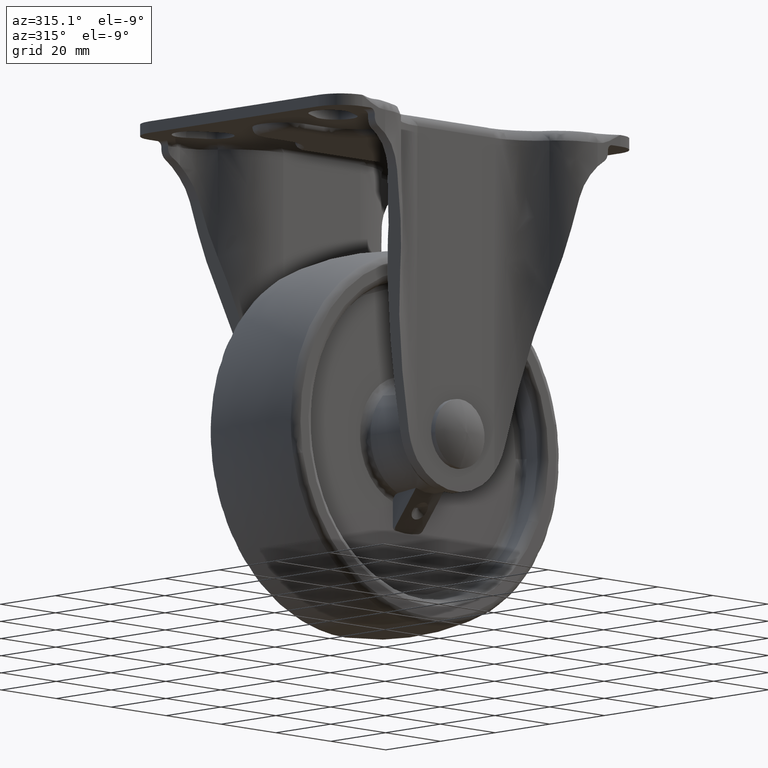
[diagram: clean part render]
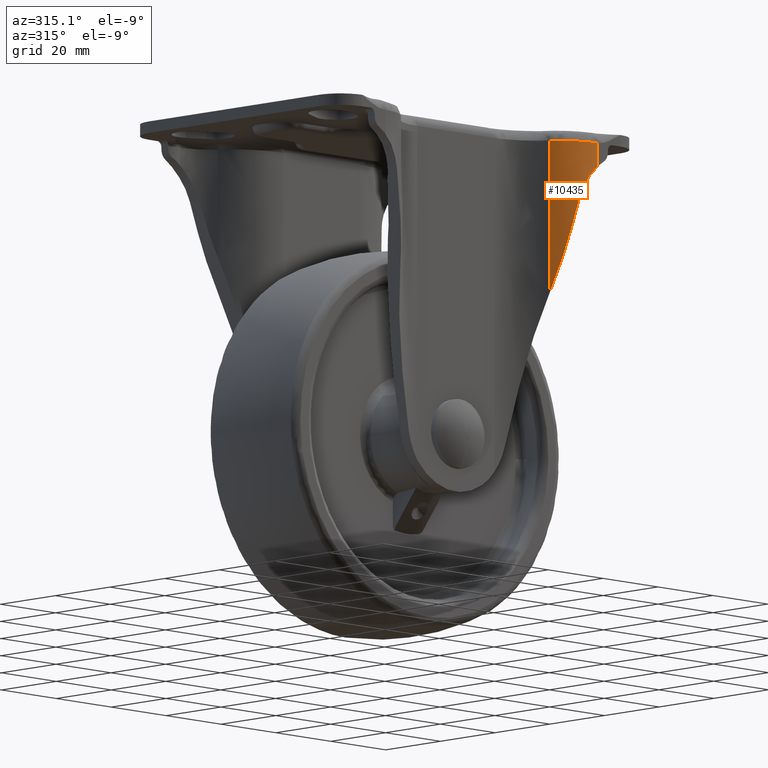
[diagram: same view with one face highlighted and labeled with its STEP entity id]
A machine part, auxiliary view. The second image highlights one B-rep face of the part: STEP entity #10435.
In plain terms, the highlighted face is a freeform B-spline surface patch.
Its self-contained STEP definition (entity closure, byte-faithful):
#8976=CARTESIAN_POINT('',(27.183154050534551,-32.933333066673747,39.021119855691794));
#8977=VERTEX_POINT('',#8976);
#9000=CARTESIAN_POINT('',(33.235936000000002,-37.881864576974763,64.170862999999898));
#9001=VERTEX_POINT('',#9000);
#9007=CARTESIAN_POINT('',(27.183154050534551,-32.933333066673747,39.021119855691794));
#9008=CARTESIAN_POINT('',(29.490061581966525,-36.287633092478409,48.606486114971645));
#9009=CARTESIAN_POINT('',(33.235936000000081,-37.881864576974763,64.170863000000338));
#9017=(BOUNDED_CURVE()B_SPLINE_CURVE(2,(#9007,#9008,#9009),.UNSPECIFIED.,.F.,.U.)CURVE()GEOMETRIC_REPRESENTATION_ITEM()QUASI_UNIFORM_CURVE()RATIONAL_B_SPLINE_CURVE((1.0,0.960226820885866,1.0))REPRESENTATION_ITEM(''));
#9018=EDGE_CURVE('',#8977,#9001,#9017,.T.);
#9037=CARTESIAN_POINT('',(38.718418398229701,-39.0,72.857962249831104));
#9038=VERTEX_POINT('',#9037);
#9039=CARTESIAN_POINT('',(38.718418398229701,-39.0,72.857962249831104));
#9040=CARTESIAN_POINT('',(38.378148219419963,-39.000000139261921,72.582225583629508));
#9041=CARTESIAN_POINT('',(38.048559371252907,-38.987613638047520,72.292037377035328));
#9042=CARTESIAN_POINT('',(37.650261931440546,-38.959420870737141,71.910906669013997));
#9043=CARTESIAN_POINT('',(37.571263151821583,-38.953142048418357,71.833730582757767));
#9044=CARTESIAN_POINT('',(37.415332713012560,-38.939444304933907,71.678219414998807));
#9045=CARTESIAN_POINT('',(37.184274385568841,-38.917170154480658,71.442965760057305));
#9046=CARTESIAN_POINT('',(36.961610660013072,-38.890104544515403,71.201789692000517));
#9047=CARTESIAN_POINT('',(36.527236052606057,-38.830552334689749,70.711596201669451));
#9048=CARTESIAN_POINT('',(36.252234468086982,-38.783636934122072,70.374360955949555));
#9049=CARTESIAN_POINT('',(35.730688652869567,-38.680065279968673,69.678920648899449));
#9050=CARTESIAN_POINT('',(35.484145391681828,-38.623399192571362,69.320716178288322));
#9051=CARTESIAN_POINT('',(35.193754051265998,-38.549183370932063,68.859481453978162));
#9052=CARTESIAN_POINT('',(35.136566877465803,-38.534170601739881,68.766559274836837));
#9053=CARTESIAN_POINT('',(35.023981637057418,-38.503872486040663,68.579349872199671));
#9054=CARTESIAN_POINT('',(34.968537885112838,-38.488573781440508,68.484980177101377));
#9055=CARTESIAN_POINT('',(34.805490187949367,-38.442536539316777,68.200835411072376));
#9056=CARTESIAN_POINT('',(34.701021962322187,-38.411621193406198,68.009797783294800));
#9057=CARTESIAN_POINT('',(34.400052082844027,-38.319002419130122,67.431851311554411));
#9058=CARTESIAN_POINT('',(34.215959558420728,-38.257436588384948,67.040117405987303));
#9059=CARTESIAN_POINT('',(33.880173857707852,-38.138613032183002,66.243511105347920));
#9060=CARTESIAN_POINT('',(33.728481909911253,-38.081351711810420,65.838638726609375));
#9061=CARTESIAN_POINT('',(33.457602648940977,-37.974785080044612,65.015215300883341));
#9062=CARTESIAN_POINT('',(33.338413652609518,-37.925478737270431,64.596665047002290));
#9063=CARTESIAN_POINT('',(33.235936000000002,-37.881864576974763,64.170862999999898));
#9064=B_SPLINE_CURVE_WITH_KNOTS('',3,(#9039,#9040,#9041,#9042,#9043,#9044,#9045,#9046,#9047,#9048,#9049,#9050,#9051,#9052,#9053,#9054,#9055,#9056,#9057,#9058,#9059,#9060,#9061,#9062,#9063),.UNSPECIFIED.,.F.,.U.,(4,2,2,1,2,2,2,2,2,2,2,2,4),(0.0,0.124999999999998,0.156249999999998,0.187499999999998,0.249999999999996,0.374999999999993,0.499999999999991,0.531249999999992,0.562499999999994,0.624999999999995,0.749999999999997,0.874999999999998,1.0),.UNSPECIFIED.);
#9065=EDGE_CURVE('',#9038,#9001,#9064,.T.);
#9565=CARTESIAN_POINT('',(38.718418398229701,-38.999999999999297,79.000008000000093));
#9566=VERTEX_POINT('',#9565);
#9574=CARTESIAN_POINT('',(38.718418398229701,-39.0,72.857962249831104));
#9575=CARTESIAN_POINT('',(38.718418398229701,-38.999999999999297,79.000008000000093));
#9576=QUASI_UNIFORM_CURVE('',1,(#9574,#9575),.UNSPECIFIED.,.F.,.U.);
#9577=EDGE_CURVE('',#9038,#9566,#9576,.T.);
#10396=CARTESIAN_POINT('',(39.211428597663392,-38.991316471529430,38.021647652084077));
#10397=CARTESIAN_POINT('',(39.211428597663392,-38.991316471529430,80.024467008698011));
#10398=CARTESIAN_POINT('',(31.106907020382295,-39.276896992333754,38.021647652084091));
#10399=CARTESIAN_POINT('',(31.106907020382295,-39.276896992333754,80.024467008697997));
#10400=CARTESIAN_POINT('',(26.826959134494615,-32.388727981300171,38.021647652084070));
#10401=CARTESIAN_POINT('',(26.826959134494615,-32.388727981300171,80.024467008698011));
#10409=(BOUNDED_SURFACE()B_SPLINE_SURFACE(1,2,((#10396,#10398,#10400),(#10397,#10399,#10401)),.UNSPECIFIED.,.F.,.F.,.U.)B_SPLINE_SURFACE_WITH_KNOTS((2,2),(3,3),(0.0,42.002819356613927),(0.0,15.047894337109140),.UNSPECIFIED.)GEOMETRIC_REPRESENTATION_ITEM()RATIONAL_B_SPLINE_SURFACE(((1.0,0.861592665832251,0.991423490651759),(1.0,0.861592665832251,0.991423490651759)))REPRESENTATION_ITEM('')SURFACE());
#10410=ORIENTED_EDGE('',*,*,#9577,.T.);
#10411=CARTESIAN_POINT('',(27.183154050534551,-32.933333066673747,79.000008000000093));
#10412=VERTEX_POINT('',#10411);
#10413=CARTESIAN_POINT('',(38.718418398229709,-38.999999999999311,79.000008000000093));
#10414=CARTESIAN_POINT('',(31.355483566524576,-39.000002313133493,79.000008000000093));
#10415=CARTESIAN_POINT('',(27.183153922484951,-32.933333154739401,79.000008000000093));
#10423=(BOUNDED_CURVE()B_SPLINE_CURVE(2,(#10413,#10414,#10415),.UNSPECIFIED.,.F.,.U.)CURVE()GEOMETRIC_REPRESENTATION_ITEM()QUASI_UNIFORM_CURVE()RATIONAL_B_SPLINE_CURVE((1.0,0.885061126436841,1.0))REPRESENTATION_ITEM(''));
#10424=EDGE_CURVE('',#9566,#10412,#10423,.T.);
#10425=ORIENTED_EDGE('',*,*,#10424,.T.);
#10426=CARTESIAN_POINT('',(27.183154050534551,-32.933333066673747,39.021119855691794));
#10427=CARTESIAN_POINT('',(27.183154050534551,-32.933333066673747,79.000008000000093));
#10428=QUASI_UNIFORM_CURVE('',1,(#10426,#10427),.UNSPECIFIED.,.F.,.U.);
#10429=EDGE_CURVE('',#8977,#10412,#10428,.T.);
#10430=ORIENTED_EDGE('',*,*,#10429,.F.);
#10431=ORIENTED_EDGE('',*,*,#9018,.T.);
#10432=ORIENTED_EDGE('',*,*,#9065,.F.);
#10433=EDGE_LOOP('',(#10410,#10425,#10430,#10431,#10432));
#10434=FACE_OUTER_BOUND('',#10433,.T.);
#10435=ADVANCED_FACE('',(#10434),#10409,.T.);